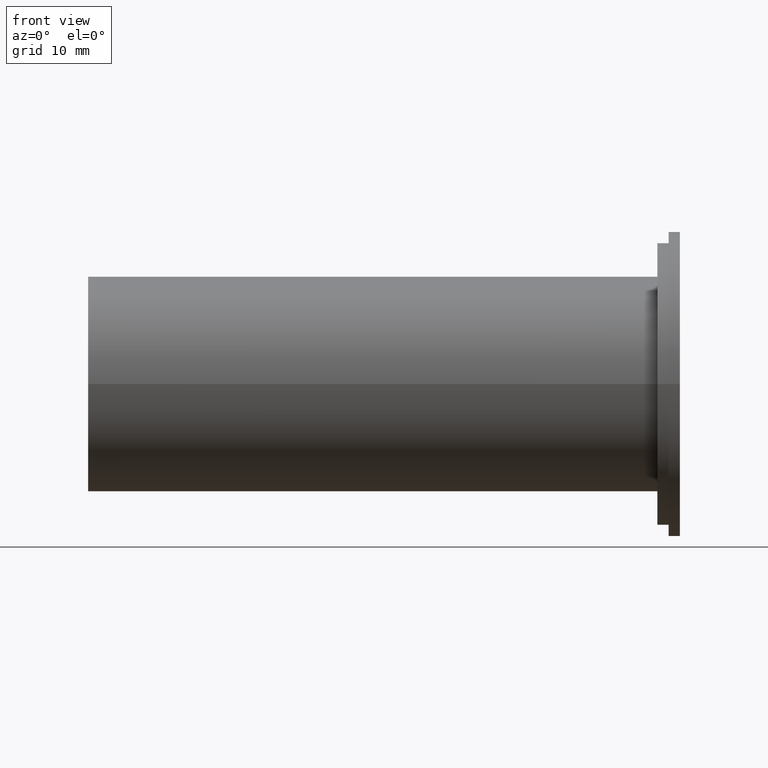
[diagram: clean part render]
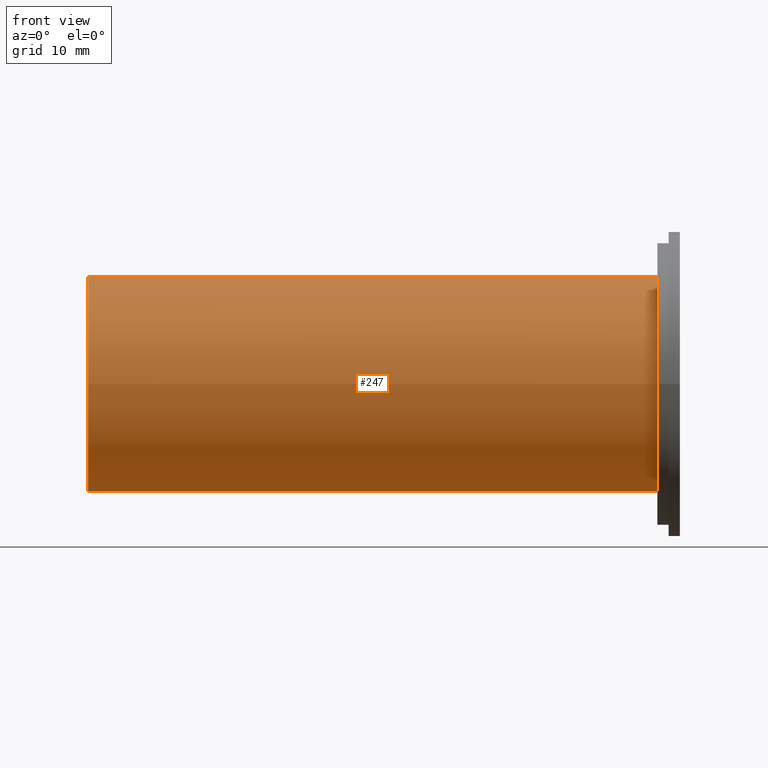
[diagram: same view with one face highlighted and labeled with its STEP entity id]
A machine part, front view. The second image highlights one B-rep face of the part: STEP entity #247.
In plain terms, the highlighted cylindrical surface (bore or boss wall) has radius 9.525 mm, axis along (1, 0, 0).
Its self-contained STEP definition (entity closure, byte-faithful):
#105=FACE_OUTER_BOUND('',#120,.T.);
#120=EDGE_LOOP('',(#222,#223,#224,#225));
#130=LINE('',#447,#138);
#138=VECTOR('',#366,9.525);
#150=CIRCLE('',#292,9.525);
#151=CIRCLE('',#294,9.525);
#166=VERTEX_POINT('',#442);
#167=VERTEX_POINT('',#445);
#185=EDGE_CURVE('',#166,#166,#150,.T.);
#186=EDGE_CURVE('',#167,#167,#151,.T.);
#187=EDGE_CURVE('',#167,#166,#130,.T.);
#222=ORIENTED_EDGE('',*,*,#186,.F.);
#223=ORIENTED_EDGE('',*,*,#187,.T.);
#224=ORIENTED_EDGE('',*,*,#185,.T.);
#225=ORIENTED_EDGE('',*,*,#187,.F.);
#236=CYLINDRICAL_SURFACE('',#293,9.525);
#247=ADVANCED_FACE('',(#105),#236,.T.);
#292=AXIS2_PLACEMENT_3D('',#443,#360,#361);
#293=AXIS2_PLACEMENT_3D('',#444,#362,#363);
#294=AXIS2_PLACEMENT_3D('',#446,#364,#365);
#360=DIRECTION('center_axis',(1.,0.,0.));
#361=DIRECTION('ref_axis',(0.,0.,-1.));
#362=DIRECTION('center_axis',(1.,0.,0.));
#363=DIRECTION('ref_axis',(0.,1.,0.));
#364=DIRECTION('center_axis',(1.,0.,0.));
#365=DIRECTION('ref_axis',(0.,0.,-1.));
#366=DIRECTION('',(-1.,0.,0.));
#442=CARTESIAN_POINT('',(-52.5,-9.525,-1.16647607618785E-15));
#443=CARTESIAN_POINT('Origin',(-52.5,0.,0.));
#444=CARTESIAN_POINT('Origin',(-27.25,0.,0.));
#445=CARTESIAN_POINT('',(-2.,-9.525,-1.16647607618785E-15));
#446=CARTESIAN_POINT('Origin',(-2.,0.,0.));
#447=CARTESIAN_POINT('',(-27.25,-9.525,-1.16647607618785E-15));